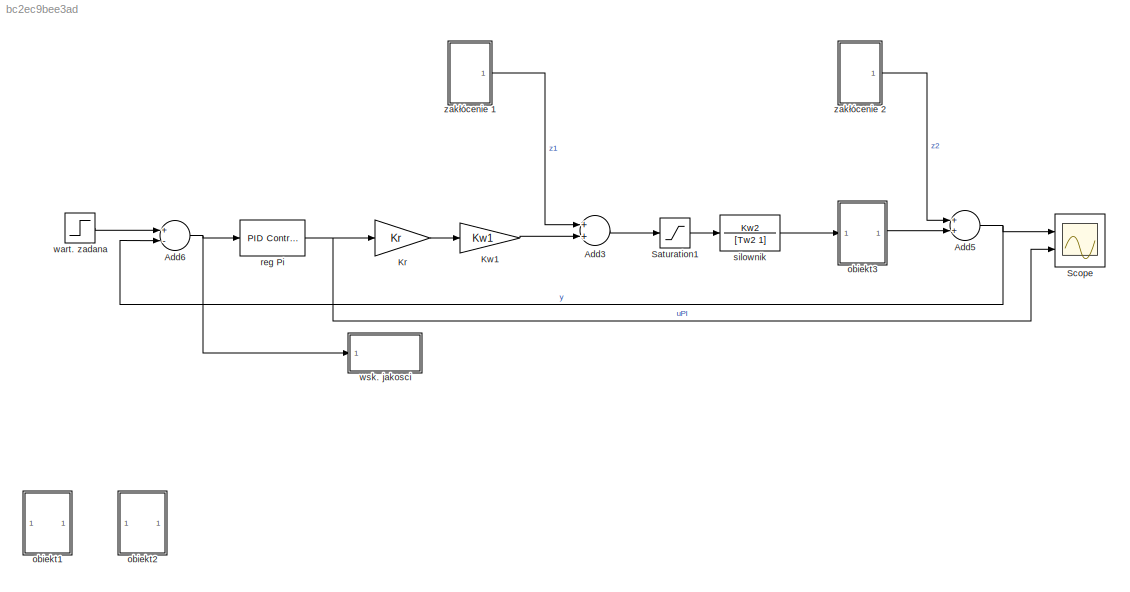
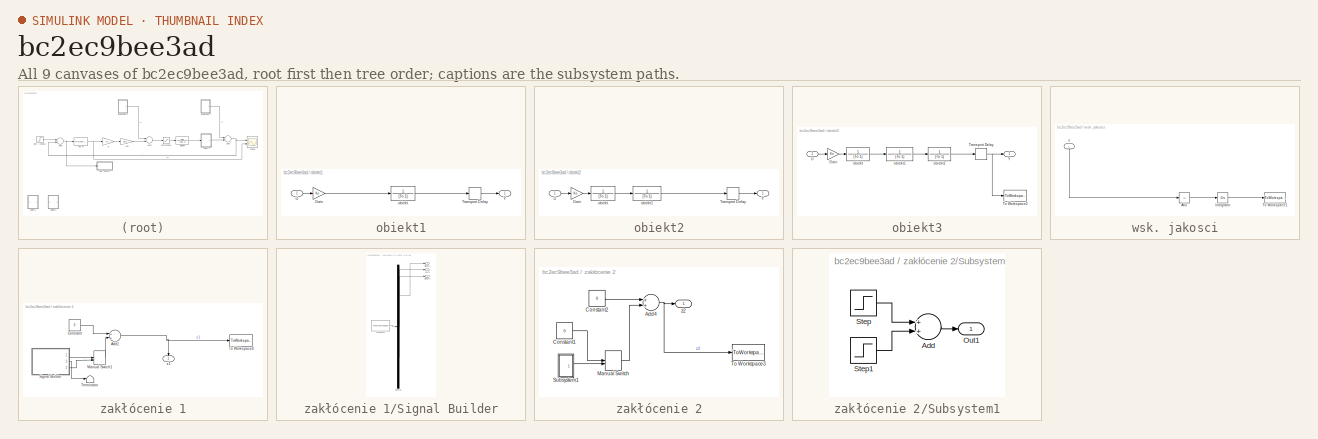
[diagram: thumbnail index - all 9 canvases of the model, root first then tree order]
MODEL slx_bc2ec9bee3ad
KIND model
CONFIG AbsTol = auto
CONFIG FixedStep = 0.01
CONFIG MaxStep = auto
CONFIG MinStep = auto
CONFIG RelTol = 1e-3
CONFIG SampleTimeConstraint = Unconstrained
CONFIG Solver = ode4
CONFIG SolverMode = Auto
CONFIG SolverName = ode4
CONFIG StartTime = 0.0
CONFIG StopTime = 60
BLOCK [Sum] Add3
  InputSameDT = off
  OutDataTypeStr = Inherit: Inherit via internal rule
  Ports = [2, 1]
  SaturateOnIntegerOverflow = off
BLOCK [Sum] Add5
  InputSameDT = off
  OutDataTypeStr = Inherit: Inherit via internal rule
  Ports = [2, 1]
  SaturateOnIntegerOverflow = off
BLOCK [Sum] Add6
  InputSameDT = off
  Inputs = +-
  OutDataTypeStr = Inherit: Inherit via internal rule
  Ports = [2, 1]
  SaturateOnIntegerOverflow = off
BLOCK [Gain] Kr
  Gain = Kr
  OutDataTypeStr = Inherit: Inherit via internal rule
  ParamDataTypeStr = Inherit: Inherit via internal rule
  SaturateOnIntegerOverflow = off
BLOCK [Gain] Kw1 
  Gain = Kw1
  OutDataTypeStr = Inherit: Inherit via internal rule
  ParamDataTypeStr = Inherit: Inherit via internal rule
  SaturateOnIntegerOverflow = off
BLOCK [Saturate] Saturation1
  InputPortMap = u0
  LowerLimit = -limit2
  Ports = [1, 1]
  UpperLimit = limit2
BLOCK [Scope] Scope
  NumInputPorts = 2
  Ports = [2]
  ScopeSpecificationString = Simulink.scopes.TimeScopeBlockCfg('CurrentConfiguration', extmgr.ConfigurationSet(extmgr.Configuration('Core','General UI',true),extmgr.Configuration('Core','Source UI',true),extmgr.Configuration('Sources','WiredSimulink',true,'DataLogging',true,'DataLoggingSaveFormat','StructureWithTime','DataLoggingDecimation','1','DataLoggingDecimateData',true),extmgr.Configuration('Visuals','Time Domain',true,...<+2518ch>
BLOCK [SubSystem] obiekt1
  Ports = [1, 1]
  RequestExecContextInheritance = off
  Variant = off
BLOCK [Gain] obiekt1/Gain
  Gain = Ko
  OutDataTypeStr = Inherit: Inherit via internal rule
  ParamDataTypeStr = Inherit: Inherit via internal rule
  SaturateOnIntegerOverflow = off
BLOCK [TransportDelay] obiekt1/Transport Delay
  DelayTime = tau
  Ports = [1, 1]
BLOCK [Inport] obiekt1/U
  IconDisplay = Port number
BLOCK [Outport] obiekt1/Y
  IconDisplay = Port number
BLOCK [TransferFcn] obiekt1/obiekt
  Denominator = [To 1]
  Numerator = 1
BLOCK [SubSystem] obiekt2
  Ports = [1, 1]
  RequestExecContextInheritance = off
  Variant = off
BLOCK [Gain] obiekt2/Gain
  Gain = Ko
  OutDataTypeStr = Inherit: Inherit via internal rule
  ParamDataTypeStr = Inherit: Inherit via internal rule
  SaturateOnIntegerOverflow = off
BLOCK [TransportDelay] obiekt2/Transport Delay
  DelayTime = tau
  Ports = [1, 1]
BLOCK [Inport] obiekt2/U
  IconDisplay = Port number
BLOCK [Outport] obiekt2/Y
  IconDisplay = Port number
BLOCK [TransferFcn] obiekt2/obiekt
  Denominator = [To 1]
  Numerator = 1
BLOCK [TransferFcn] obiekt2/obiekt1
  Denominator = [To 1]
  Numerator = 1
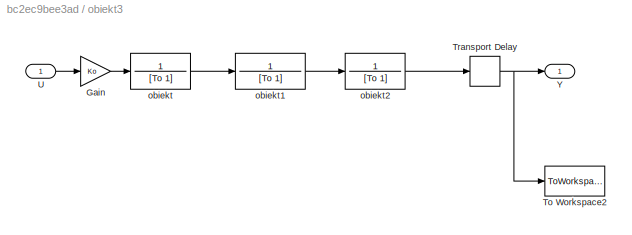
BLOCK [SubSystem] obiekt3
  Ports = [1, 1]
  RequestExecContextInheritance = off
  Variant = off
BLOCK [Gain] obiekt3/Gain
  Gain = Ko
  OutDataTypeStr = Inherit: Inherit via internal rule
  ParamDataTypeStr = Inherit: Inherit via internal rule
  SaturateOnIntegerOverflow = off
BLOCK [ToWorkspace] obiekt3/To Workspace2
  FixptAsFi = on
  MaxDataPoints = inf
  Ports = [1]
  SampleTime = -1
  Save2DSignal = 3-D array (concatenate along third dimension)
  SaveFormat = Timeseries
  VariableName = y1
BLOCK [TransportDelay] obiekt3/Transport Delay
  DelayTime = tau
  Ports = [1, 1]
BLOCK [Inport] obiekt3/U
  IconDisplay = Port number
BLOCK [Outport] obiekt3/Y
  IconDisplay = Port number
BLOCK [TransferFcn] obiekt3/obiekt
  Denominator = [To 1]
  Numerator = 1
BLOCK [TransferFcn] obiekt3/obiekt1
  Denominator = [To 1]
  Numerator = 1
BLOCK [TransferFcn] obiekt3/obiekt2
  Denominator = [To 1]
  Numerator = 1
BLOCK [Reference] reg Pi  REF=simulink/Continuous/PID Controller
  Ports = [1, 1]
  SourceBlock = simulink/Continuous/PID Controller
  SourceType = PID 1dof
BLOCK [TransferFcn] silownik
  Denominator = [Tw2 1]
  Numerator = Kw2
BLOCK [Step] wart. zadana
  After = r
  SampleTime = 0
BLOCK [SubSystem] wsk. jakosci
  Ports = [1]
  RequestExecContextInheritance = off
  Variant = off
BLOCK [Abs] wsk. jakosci/Abs
  SaturateOnIntegerOverflow = off
BLOCK [Integrator] wsk. jakosci/Integrator
  Ports = [1, 1]
BLOCK [ToWorkspace] wsk. jakosci/To Workspace1
  FixptAsFi = on
  MaxDataPoints = 1
  Ports = [1]
  SampleTime = -1
  Save2DSignal = 3-D array (concatenate along third dimension)
  VariableName = J
BLOCK [Inport] wsk. jakosci/e
  IconDisplay = Port number
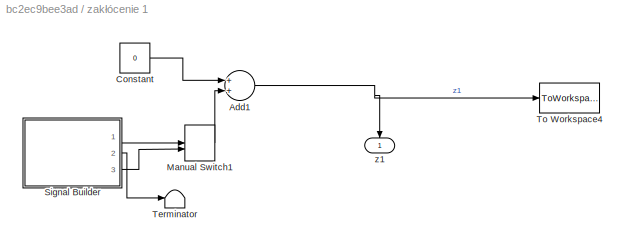
BLOCK [SubSystem] zakłócenie 1
  Ports = [0, 1]
  RequestExecContextInheritance = off
  Variant = off
BLOCK [Sum] zakłócenie 1/Add1
  InputSameDT = off
  OutDataTypeStr = Inherit: Inherit via internal rule
  Ports = [2, 1]
  SaturateOnIntegerOverflow = off
BLOCK [Constant] zakłócenie 1/Constant
  Value = 0
BLOCK [ManualSwitch] zakłócenie 1/Manual Switch1
BLOCK [SubSystem] zakłócenie 1/Signal Builder
  ClipboardFcn = sigbuilder_block('clipboard');
  CloseFcn = sigbuilder_block('close');
  ContinueFcn = sigbuilder_block('continue');
  CopyFcn = sigbuilder_block('copy');
  DeleteFcn = sigbuilder_block('delete');
  LoadFcn = sigbuilder_block('load');
  MaskHideContents = on
  ModelCloseFcn = sigbuilder_block('modelClose');
  NameChangeFcn = sigbuilder_block('namechange');
  OpenFcn = sigbuilder_block('open',[1542.6 -54.6 1012.8 448.2 ]);
  PauseFcn = sigbuilder_block('pause');
  Ports = [0, 3]
  PreSaveFcn = sigbuilder_block('preSave');
  RequestExecContextInheritance = off
  StartFcn = sigbuilder_block('start');
  StopFcn = sigbuilder_block('stop');
  Tag = STV Subsys
  Variant = off
BLOCK [Demux] zakłócenie 1/Signal Builder/Demux
  Outputs = 3
  Ports = [1, 3]
  Tag = STV Demux
BLOCK [FromWorkspace] zakłócenie 1/Signal Builder/FromWs
  SampleTime = 0.01
  Tag = STV FromWs
  VariableName = tuvar
  ZeroCross = on
BLOCK [Outport] zakłócenie 1/Signal Builder/Signal 1
  IconDisplay = Port number
  Tag = STV Outport
BLOCK [Outport] zakłócenie 1/Signal Builder/Signal 3
  IconDisplay = Port number
  Port = 3
  Tag = STV Outport
BLOCK [Outport] zakłócenie 1/Signal Builder/zero
  IconDisplay = Port number
  Port = 2
  Tag = STV Outport
BLOCK [Terminator] zakłócenie 1/Terminator
BLOCK [ToWorkspace] zakłócenie 1/To Workspace4
  FixptAsFi = on
  MaxDataPoints = inf
  Ports = [1]
  SampleTime = -1
  Save2DSignal = 3-D array (concatenate along third dimension)
  SaveFormat = Timeseries
  VariableName = z1
BLOCK [Outport] zakłócenie 1/z1
  IconDisplay = Port number
BLOCK [SubSystem] zakłócenie 2
  Ports = [0, 1]
  RequestExecContextInheritance = off
  Variant = off
BLOCK [Sum] zakłócenie 2/Add4
  InputSameDT = off
  OutDataTypeStr = Inherit: Inherit via internal rule
  Ports = [2, 1]
  SaturateOnIntegerOverflow = off
BLOCK [Constant] zakłócenie 2/Constant1
  Value = 0
BLOCK [Constant] zakłócenie 2/Constant2
  Value = 0
BLOCK [ManualSwitch] zakłócenie 2/Manual Switch
  CurrentSetting = 0
BLOCK [SubSystem] zakłócenie 2/Subsystem1
  Ports = [0, 1]
  RequestExecContextInheritance = off
  Variant = off
BLOCK [Sum] zakłócenie 2/Subsystem1/Add
  InputSameDT = off
  OutDataTypeStr = Inherit: Inherit via internal rule
  Ports = [2, 1]
  SaturateOnIntegerOverflow = off
BLOCK [Outport] zakłócenie 2/Subsystem1/Out1
  IconDisplay = Port number
BLOCK [Step] zakłócenie 2/Subsystem1/Step
  After = 5
  SampleTime = 0
  Time = 20
BLOCK [Step] zakłócenie 2/Subsystem1/Step1
  After = -5
  SampleTime = 0
  Time = 30
BLOCK [ToWorkspace] zakłócenie 2/To Workspace3
  FixptAsFi = on
  MaxDataPoints = inf
  Ports = [1]
  SampleTime = -1
  Save2DSignal = 3-D array (concatenate along third dimension)
  SaveFormat = Timeseries
  VariableName = z2
BLOCK [Outport] zakłócenie 2/z2
  IconDisplay = Port number
LINE Add3:1 -> Saturation1:1
NET Add5:1 -> Add6:2, Scope:1
NET Add6:1 -> reg Pi:1, wsk. jakosci:1
LINE Kr:1 -> Kw1 :1
LINE Kw1 :1 -> Add3:2
LINE Saturation1:1 -> silownik:1
LINE obiekt1/Gain:1 -> obiekt1/obiekt:1
LINE obiekt1/Transport Delay:1 -> obiekt1/Y:1
LINE obiekt1/U:1 -> obiekt1/Gain:1
LINE obiekt1/obiekt:1 -> obiekt1/Transport Delay:1
LINE obiekt2/Gain:1 -> obiekt2/obiekt:1
LINE obiekt2/Transport Delay:1 -> obiekt2/Y:1
LINE obiekt2/U:1 -> obiekt2/Gain:1
LINE obiekt2/obiekt1:1 -> obiekt2/Transport Delay:1
LINE obiekt2/obiekt:1 -> obiekt2/obiekt1:1
LINE obiekt3/Gain:1 -> obiekt3/obiekt:1
NET obiekt3/Transport Delay:1 -> obiekt3/To Workspace2:1, obiekt3/Y:1
LINE obiekt3/U:1 -> obiekt3/Gain:1
LINE obiekt3/obiekt1:1 -> obiekt3/obiekt2:1
LINE obiekt3/obiekt2:1 -> obiekt3/Transport Delay:1
LINE obiekt3/obiekt:1 -> obiekt3/obiekt1:1
LINE obiekt3:1 -> Add5:2
NET reg Pi:1 -> Kr:1, Scope:2
LINE silownik:1 -> obiekt3:1
LINE wart. zadana:1 -> Add6:1
LINE wsk. jakosci/Abs:1 -> wsk. jakosci/Integrator:1
LINE wsk. jakosci/Integrator:1 -> wsk. jakosci/To Workspace1:1
LINE wsk. jakosci/e:1 -> wsk. jakosci/Abs:1
NET zakłócenie 1/Add1:1 -> zakłócenie 1/To Workspace4:1, zakłócenie 1/z1:1
LINE zakłócenie 1/Constant:1 -> zakłócenie 1/Add1:1
LINE zakłócenie 1/Manual Switch1:1 -> zakłócenie 1/Add1:2
LINE zakłócenie 1/Signal Builder:1 -> zakłócenie 1/Manual Switch1:1
LINE zakłócenie 1/Signal Builder:2 -> zakłócenie 1/Terminator:1
LINE zakłócenie 1/Signal Builder:3 -> zakłócenie 1/Manual Switch1:2
LINE zakłócenie 1:1 -> Add3:1
NET zakłócenie 2/Add4:1 -> zakłócenie 2/To Workspace3:1, zakłócenie 2/z2:1
LINE zakłócenie 2/Constant1:1 -> zakłócenie 2/Manual Switch:1
LINE zakłócenie 2/Constant2:1 -> zakłócenie 2/Add4:1
LINE zakłócenie 2/Manual Switch:1 -> zakłócenie 2/Add4:2
LINE zakłócenie 2/Subsystem1/Add:1 -> zakłócenie 2/Subsystem1/Out1:1
LINE zakłócenie 2/Subsystem1/Step1:1 -> zakłócenie 2/Subsystem1/Add:2
LINE zakłócenie 2/Subsystem1/Step:1 -> zakłócenie 2/Subsystem1/Add:1
LINE zakłócenie 2/Subsystem1:1 -> zakłócenie 2/Manual Switch:2
LINE zakłócenie 2:1 -> Add5:1
note: NET lines group one-source signal fan-out (src -> all destinations, sorted); 1:1 wires keep LINE
